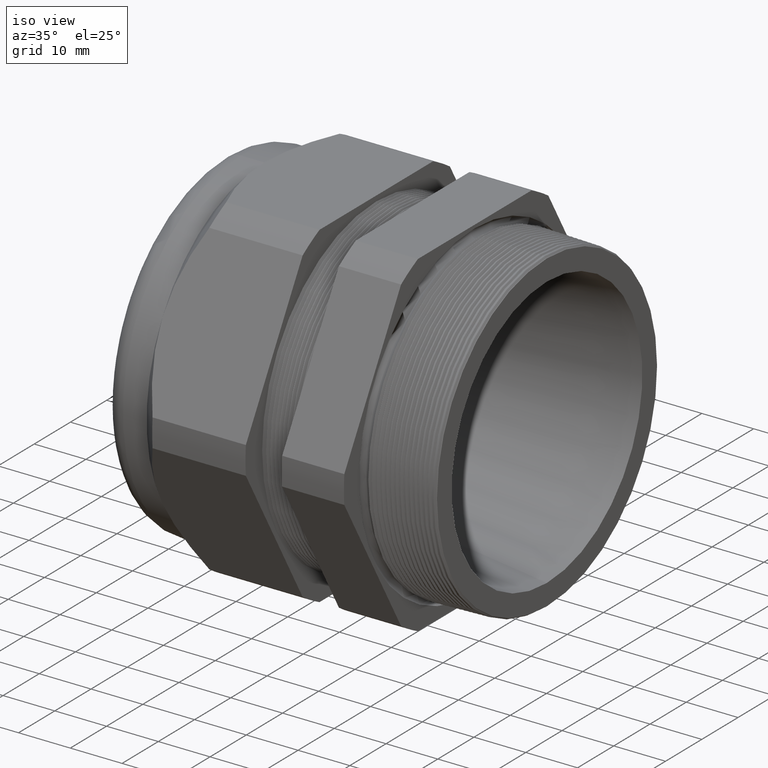
[diagram: clean part render]
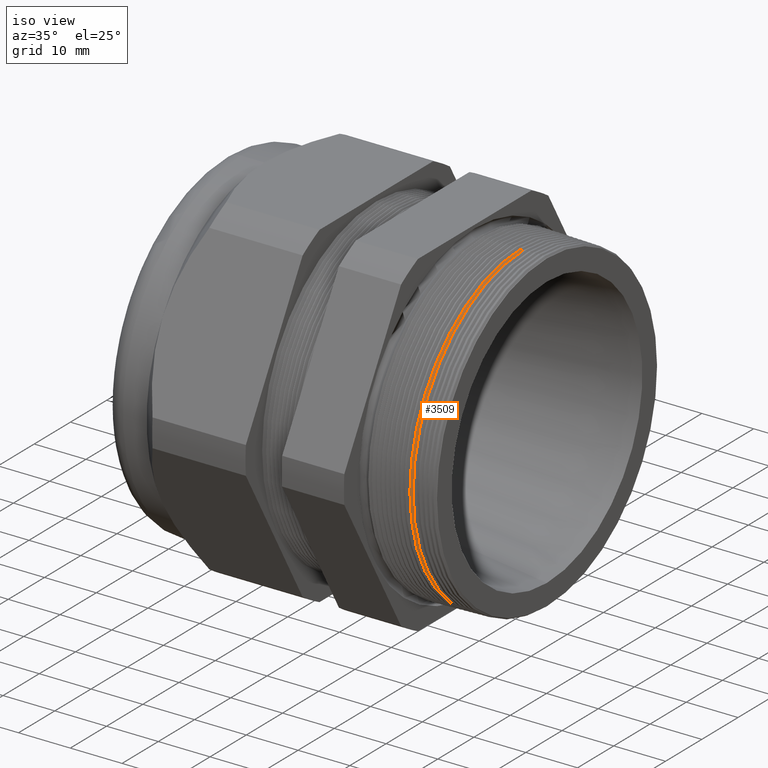
[diagram: same view with one face highlighted and labeled with its STEP entity id]
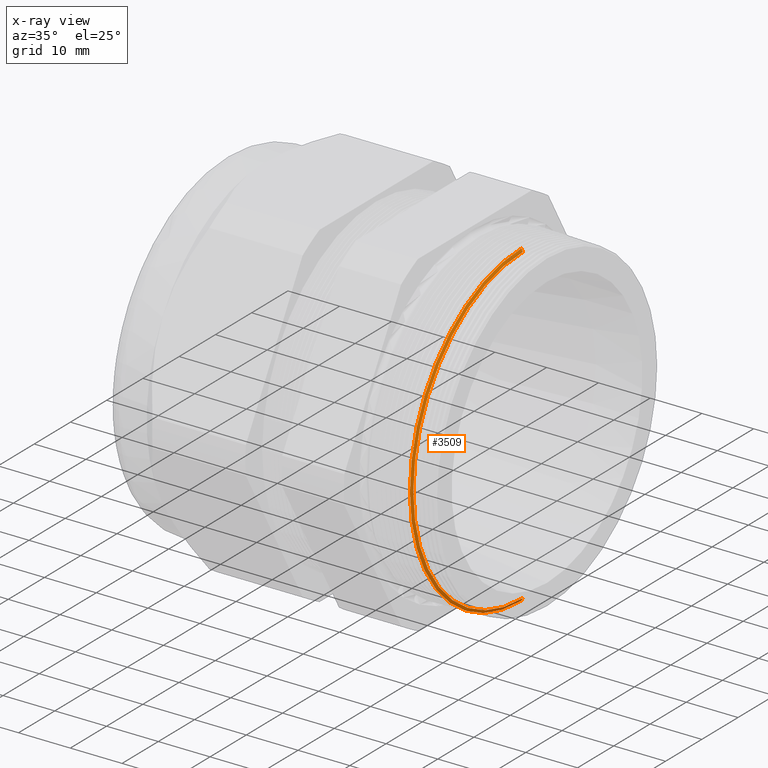
[diagram: x-ray of the same camera — body ghosted, the highlighted face saturated]
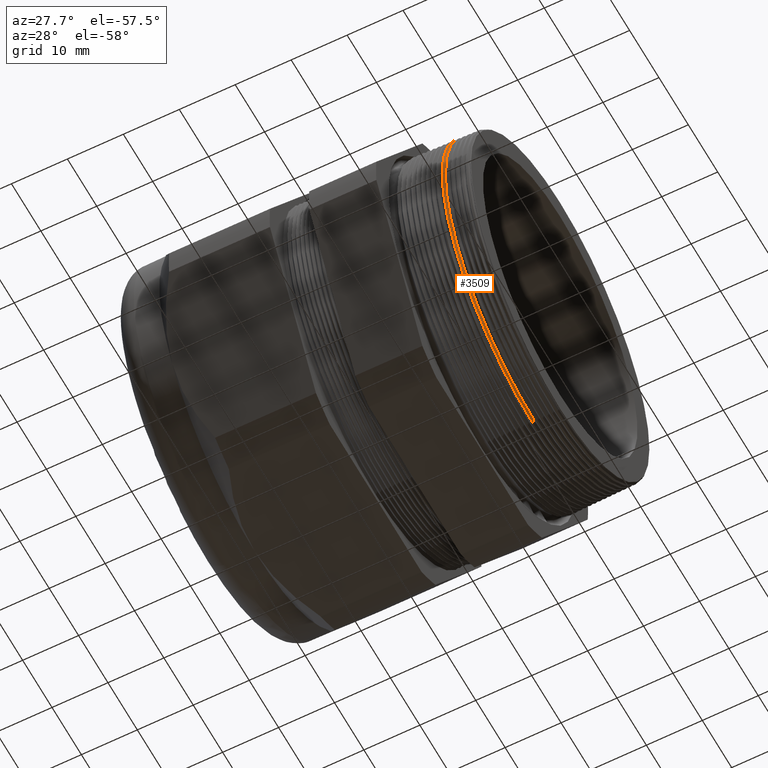
[diagram: same view with one face highlighted and labeled with its STEP entity id]
A machine part, iso view. The second image highlights one B-rep face of the part: STEP entity #3509.
The next image is the same camera in x-ray: the body ghosted, the highlighted face saturated — about 0% of this face is hidden behind the body in this view.
A second angle (auxiliary view) of the same face is appended — the face is thin or edge-on in the first view.
In plain terms, the highlighted conical surface has half-angle 61.5 deg.
Its self-contained STEP definition (entity closure, byte-faithful):
#137 = DIRECTION ( 'NONE',  ( -0.4771587602596173400, 1.076240564057388800E-016, -0.8788171126619606100 ) ) ;
#138 = VECTOR ( 'NONE', #137, 39.37007874015748900 ) ;
#139 = CARTESIAN_POINT ( 'NONE',  ( 0.04000000000000004900, 1.494549044582627900E-016, -1.220391908608417600 ) ) ;
#140 = LINE ( 'NONE', #139, #138 ) ;
#1112 = DIRECTION ( 'NONE',  ( 0.0000000000000000000, 0.0000000000000000000, -1.000000000000000000 ) ) ;
#1113 = DIRECTION ( 'NONE',  ( 1.000000000000000000, 0.0000000000000000000, 0.0000000000000000000 ) ) ;
#1114 = AXIS2_PLACEMENT_3D ( 'NONE', #1119, #1113, #1112 ) ;
#1115 = CIRCLE ( 'NONE', #1114, 1.189948790814587800 ) ;
#1116 = DIRECTION ( 'NONE',  ( 0.0000000000000000000, 0.0000000000000000000, 1.000000000000000000 ) ) ;
#1117 = DIRECTION ( 'NONE',  ( -1.000000000000000000, 0.0000000000000000000, 0.0000000000000000000 ) ) ;
#1118 = AXIS2_PLACEMENT_3D ( 'NONE', #1127, #1117, #1116 ) ;
#1119 = CARTESIAN_POINT ( 'NONE',  ( 0.05652926432092470600, 0.0000000000000000000, 0.0000000000000000000 ) ) ;
#1121 = CONICAL_SURFACE ( 'NONE', #1118, 1.220391908608417600, 1.073377489976502500 ) ;
#1122 = FACE_OUTER_BOUND ( 'NONE', #3532, .T. ) ;
#1127 = CARTESIAN_POINT ( 'NONE',  ( 0.04000000000000004900, 0.0000000000000000000, 0.0000000000000000000 ) ) ;
#2422 = EDGE_CURVE ( 'NONE', #2823, #2766, #4874, .T. ) ;
#2727 = VERTEX_POINT ( 'NONE', #5488 ) ;
#2729 = VERTEX_POINT ( 'NONE', #5481 ) ;
#2766 = VERTEX_POINT ( 'NONE', #5539 ) ;
#2771 = EDGE_CURVE ( 'NONE', #2729, #2823, #5597, .T. ) ;
#2823 = VERTEX_POINT ( 'NONE', #5669 ) ;
#2889 = EDGE_CURVE ( 'NONE', #2727, #2766, #140, .T. ) ;
#3509 = ADVANCED_FACE ( 'NONE', ( #1122 ), #1121, .T. ) ;
#3510 = ORIENTED_EDGE ( 'NONE', *, *, #2889, .F. ) ;
#3511 = ORIENTED_EDGE ( 'NONE', *, *, #3512, .F. ) ;
#3512 = EDGE_CURVE ( 'NONE', #2729, #2727, #1115, .T. ) ;
#3513 = ORIENTED_EDGE ( 'NONE', *, *, #2771, .T. ) ;
#3514 = ORIENTED_EDGE ( 'NONE', *, *, #2422, .T. ) ;
#3532 = EDGE_LOOP ( 'NONE', ( #3510, #3511, #3513, #3514 ) ) ;
#4870 = DIRECTION ( 'NONE',  ( 0.0000000000000000000, 0.0000000000000000000, 1.000000000000000000 ) ) ;
#4871 = DIRECTION ( 'NONE',  ( 1.000000000000000000, 0.0000000000000000000, 0.0000000000000000000 ) ) ;
#4872 = CARTESIAN_POINT ( 'NONE',  ( 0.04504799980645202800, 0.0000000000000000000, 0.0000000000000000000 ) ) ;
#4873 = AXIS2_PLACEMENT_3D ( 'NONE', #4872, #4871, #4870 ) ;
#4874 = CIRCLE ( 'NONE', #4873, 1.211094649532192100 ) ;
#5481 = CARTESIAN_POINT ( 'NONE',  ( 0.05652926432092470600, 0.0000000000000000000, 1.189948790814587800 ) ) ;
#5488 = CARTESIAN_POINT ( 'NONE',  ( 0.05652926432092470600, 1.470215081917216800E-016, -1.189948790814587800 ) ) ;
#5539 = CARTESIAN_POINT ( 'NONE',  ( 0.04504799980645202800, 1.483329842036505000E-016, -1.211094649532192100 ) ) ;
#5594 = DIRECTION ( 'NONE',  ( -0.4771587602596173400, 0.0000000000000000000, 0.8788171126619606100 ) ) ;
#5595 = VECTOR ( 'NONE', #5594, 39.37007874015748900 ) ;
#5596 = CARTESIAN_POINT ( 'NONE',  ( 0.04000000000000004900, 0.0000000000000000000, 1.220391908608417600 ) ) ;
#5597 = LINE ( 'NONE', #5596, #5595 ) ;
#5669 = CARTESIAN_POINT ( 'NONE',  ( 0.04504799980645202800, 0.0000000000000000000, 1.211094649532192100 ) ) ;